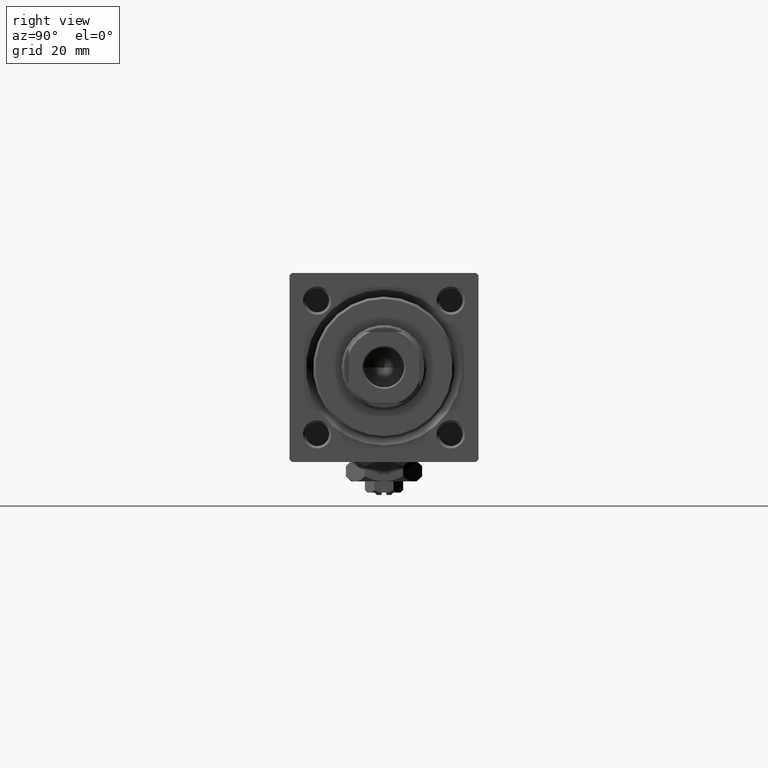
[diagram: clean part render]
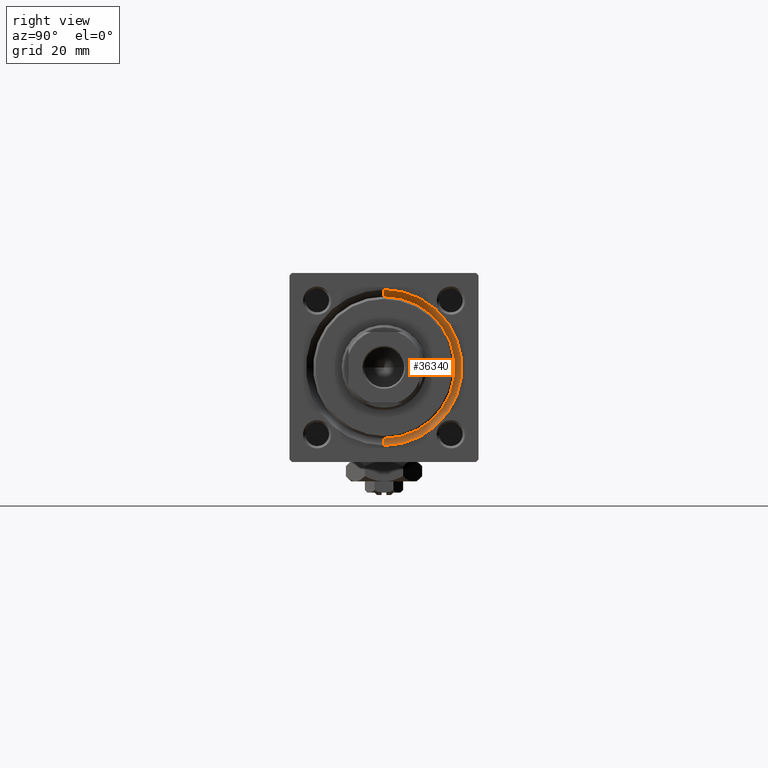
[diagram: same view with one face highlighted and labeled with its STEP entity id]
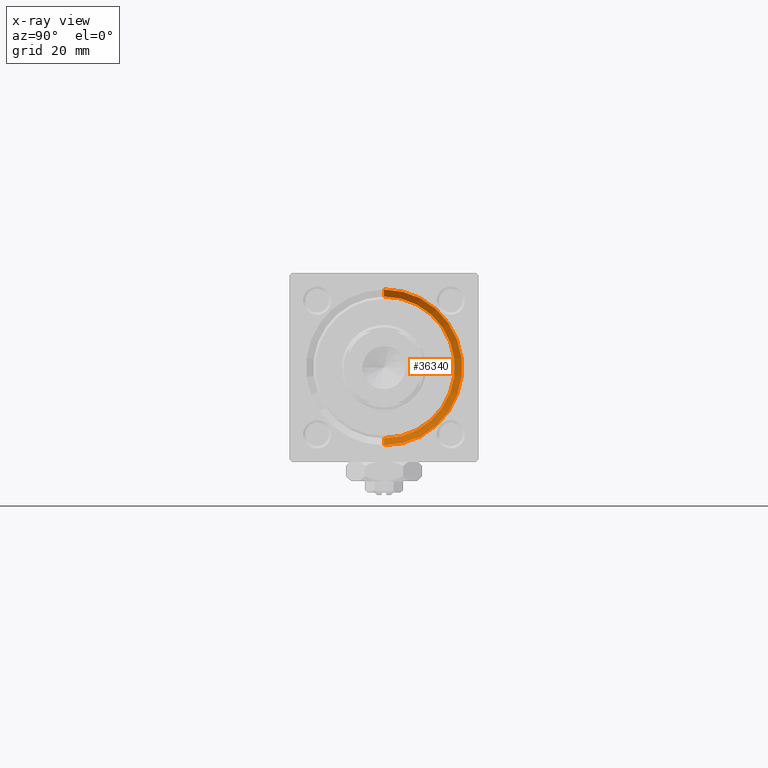
[diagram: x-ray of the same camera — body ghosted, the highlighted face saturated]
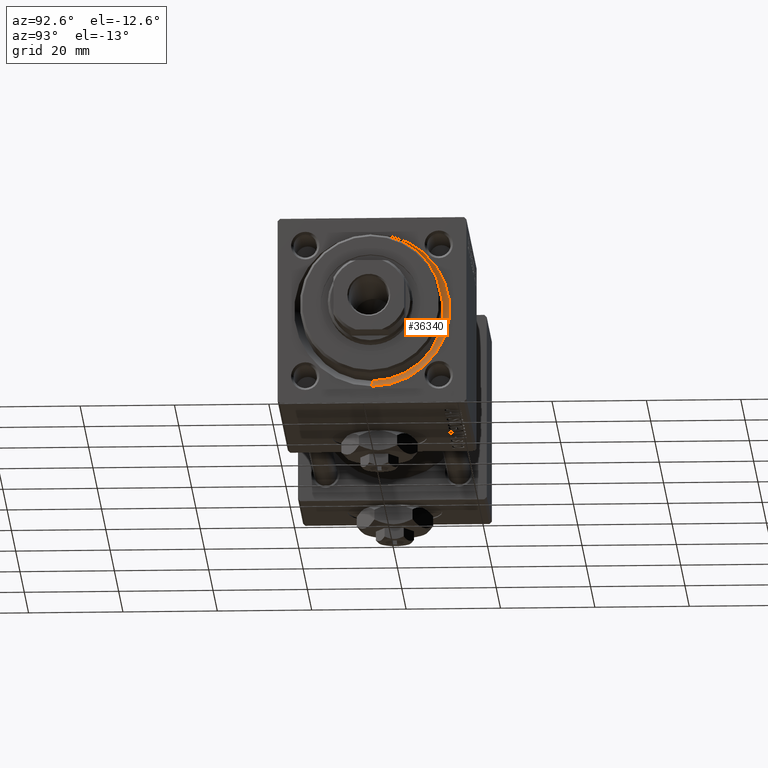
[diagram: same view with one face highlighted and labeled with its STEP entity id]
A machine part, right view. The second image highlights one B-rep face of the part: STEP entity #36340.
The next image is the same camera in x-ray: the body ghosted, the highlighted face saturated — about 0% of this face is hidden behind the body in this view.
A second angle (auxiliary view) of the same face is appended — the face is thin or edge-on in the first view.
In plain terms, the highlighted conical surface has half-angle 45 deg.
Its self-contained STEP definition (entity closure, byte-faithful):
#2880 = FACE_OUTER_BOUND ( 'NONE', #14904, .T. ) ;
#3155 = DIRECTION ( 'NONE',  ( 0.000000000000000000, 0.000000000000000000, -1.000000000000000000 ) ) ;
#3832 = DIRECTION ( 'NONE',  ( 0.7071067811865474617, 8.659560562354932858E-17, 0.7071067811865474617 ) ) ;
#6037 = DIRECTION ( 'NONE',  ( 0.000000000000000000, 0.000000000000000000, 1.000000000000000000 ) ) ;
#9191 = CARTESIAN_POINT ( 'NONE',  ( 119.0000000000000142, 0.000000000000000000, 0.000000000000000000 ) ) ;
#11161 = CARTESIAN_POINT ( 'NONE',  ( 117.5000000000000000, 1.836970198721029589E-15, 15.00000000000000000 ) ) ;
#11446 = AXIS2_PLACEMENT_3D ( 'NONE', #48853, #12496, #21445 ) ;
#11706 = CARTESIAN_POINT ( 'NONE',  ( 119.0000000000000142, 2.020667218593134678E-15, 16.50000000000001421 ) ) ;
#11968 = CARTESIAN_POINT ( 'NONE',  ( 117.5000000000000000, 1.836970198721029589E-15, 15.00000000000000000 ) ) ;
#12496 = DIRECTION ( 'NONE',  ( 1.000000000000000000, 0.000000000000000000, 0.000000000000000000 ) ) ;
#13445 = EDGE_CURVE ( 'NONE', #31444, #46591, #44253, .T. ) ;
#14904 = EDGE_LOOP ( 'NONE', ( #32475, #16932, #51716, #43566 ) ) ;
#15000 = CARTESIAN_POINT ( 'NONE',  ( 117.5000000000000000, 0.000000000000000000, 0.000000000000000000 ) ) ;
#16319 = VERTEX_POINT ( 'NONE', #11161 ) ;
#16932 = ORIENTED_EDGE ( 'NONE', *, *, #20381, .F. ) ;
#17120 = LINE ( 'NONE', #17646, #43567 ) ;
#17646 = CARTESIAN_POINT ( 'NONE',  ( 117.5000000000000000, 0.000000000000000000, -15.00000000000000000 ) ) ;
#19503 = CARTESIAN_POINT ( 'NONE',  ( 119.0000000000000142, 0.000000000000000000, -16.50000000000001421 ) ) ;
#20381 = EDGE_CURVE ( 'NONE', #51998, #16319, #49267, .T. ) ;
#21445 = DIRECTION ( 'NONE',  ( 0.000000000000000000, 0.000000000000000000, 1.000000000000000000 ) ) ;
#23173 = DIRECTION ( 'NONE',  ( 1.000000000000000000, 0.000000000000000000, 0.000000000000000000 ) ) ;
#25305 = CONICAL_SURFACE ( 'NONE', #37895, 15.00000000000000000, 0.7853981633974482790 ) ;
#25335 = EDGE_CURVE ( 'NONE', #51998, #46591, #17120, .T. ) ;
#28274 = AXIS2_PLACEMENT_3D ( 'NONE', #9191, #46328, #6037 ) ;
#29655 = VECTOR ( 'NONE', #3832, 1000.000000000000114 ) ;
#31444 = VERTEX_POINT ( 'NONE', #11706 ) ;
#32475 = ORIENTED_EDGE ( 'NONE', *, *, #39754, .F. ) ;
#36340 = ADVANCED_FACE ( 'NONE', ( #2880 ), #25305, .F. ) ;
#37895 = AXIS2_PLACEMENT_3D ( 'NONE', #15000, #23173, #3155 ) ;
#38174 = DIRECTION ( 'NONE',  ( 0.7071067811865474617, 0.000000000000000000, -0.7071067811865474617 ) ) ;
#39754 = EDGE_CURVE ( 'NONE', #16319, #31444, #47296, .T. ) ;
#43566 = ORIENTED_EDGE ( 'NONE', *, *, #13445, .F. ) ;
#43567 = VECTOR ( 'NONE', #38174, 1000.000000000000114 ) ;
#44253 = CIRCLE ( 'NONE', #28274, 16.50000000000001421 ) ;
#46328 = DIRECTION ( 'NONE',  ( -1.000000000000000000, -0.000000000000000000, -0.000000000000000000 ) ) ;
#46381 = CARTESIAN_POINT ( 'NONE',  ( 117.5000000000000000, 0.000000000000000000, -15.00000000000000000 ) ) ;
#46591 = VERTEX_POINT ( 'NONE', #19503 ) ;
#47296 = LINE ( 'NONE', #11968, #29655 ) ;
#48853 = CARTESIAN_POINT ( 'NONE',  ( 117.5000000000000000, 0.000000000000000000, 0.000000000000000000 ) ) ;
#49267 = CIRCLE ( 'NONE', #11446, 15.00000000000000000 ) ;
#51716 = ORIENTED_EDGE ( 'NONE', *, *, #25335, .T. ) ;
#51998 = VERTEX_POINT ( 'NONE', #46381 ) ;